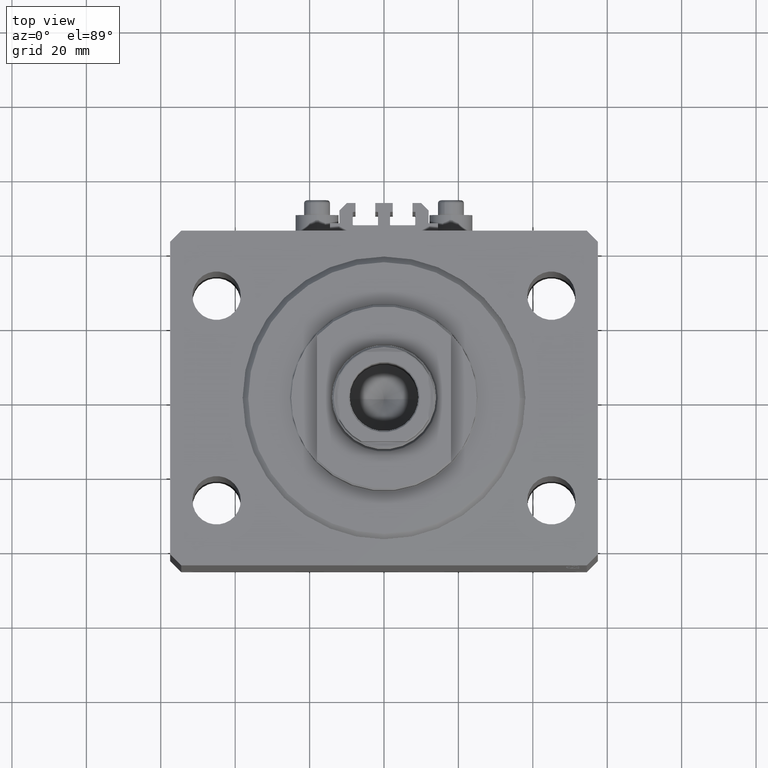
[diagram: clean part render]
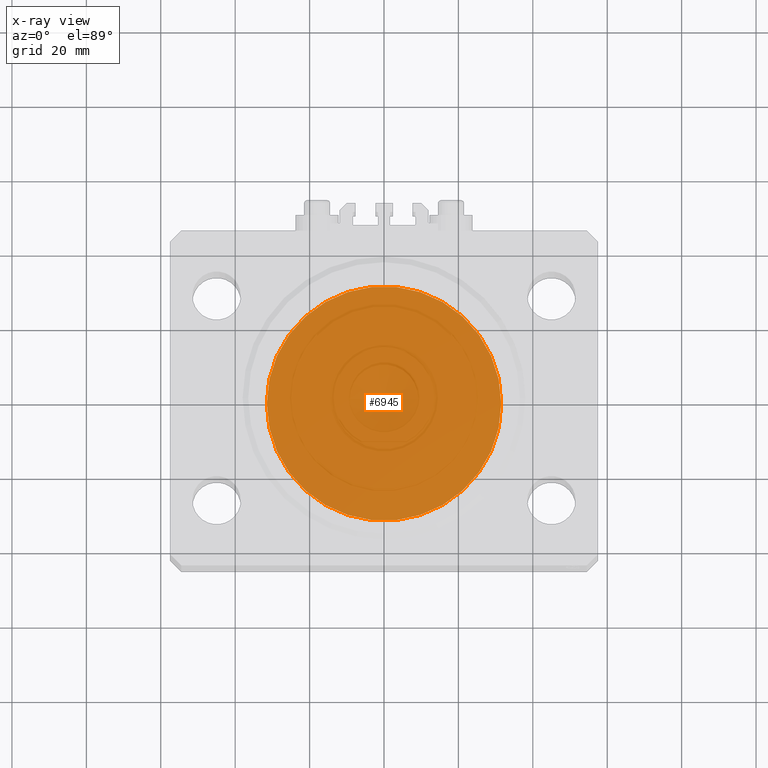
[diagram: x-ray — body ghosted, one internal face saturated and labeled with its STEP entity id]
A machine part, top view, then the same camera in x-ray: the body is ghosted and one INTERNAL B-rep face — a face not visible from any outside direction — is saturated and labeled: STEP entity #6945.
In plain terms, the highlighted planar face has unit normal (0, 0, 1).
Its self-contained STEP definition (entity closure, byte-faithful):
#2447 = ORIENTED_EDGE ( 'NONE', *, *, #9076, .F. ) ;
#3411 = DIRECTION ( 'NONE',  ( 1.000000000000000000, 0.000000000000000000, 0.000000000000000000 ) ) ;
#3525 = DIRECTION ( 'NONE',  ( 0.000000000000000000, 0.000000000000000000, 1.000000000000000000 ) ) ;
#3631 = DIRECTION ( 'NONE',  ( 0.000000000000000000, 0.000000000000000000, 1.000000000000000000 ) ) ;
#5574 = DIRECTION ( 'NONE',  ( 0.000000000000000000, 0.000000000000000000, 1.000000000000000000 ) ) ;
#6945 = ADVANCED_FACE ( 'NONE', ( #14962 ), #29592, .F. ) ;
#8308 = EDGE_LOOP ( 'NONE', ( #2447, #47065 ) ) ;
#9076 = EDGE_CURVE ( 'NONE', #36873, #11482, #27578, .T. ) ;
#9630 = EDGE_CURVE ( 'NONE', #11482, #36873, #14582, .T. ) ;
#11377 = DIRECTION ( 'NONE',  ( 1.000000000000000000, 0.000000000000000000, -0.000000000000000000 ) ) ;
#11482 = VERTEX_POINT ( 'NONE', #11994 ) ;
#11994 = CARTESIAN_POINT ( 'NONE',  ( 31.50000000000000000, 3.857637417314162689E-15, 0.000000000000000000 ) ) ;
#14582 = CIRCLE ( 'NONE', #42102, 31.50000000000000000 ) ;
#14962 = FACE_OUTER_BOUND ( 'NONE', #8308, .T. ) ;
#25292 = AXIS2_PLACEMENT_3D ( 'NONE', #40699, #3631, #3411 ) ;
#26899 = CARTESIAN_POINT ( 'NONE',  ( 0.000000000000000000, 0.000000000000000000, 0.000000000000000000 ) ) ;
#27578 = CIRCLE ( 'NONE', #25292, 31.50000000000000000 ) ;
#29592 = PLANE ( 'NONE',  #36664 ) ;
#33387 = CARTESIAN_POINT ( 'NONE',  ( -31.50000000000000000, 0.000000000000000000, 0.000000000000000000 ) ) ;
#36664 = AXIS2_PLACEMENT_3D ( 'NONE', #44172, #3525, #11377 ) ;
#36873 = VERTEX_POINT ( 'NONE', #33387 ) ;
#40699 = CARTESIAN_POINT ( 'NONE',  ( 0.000000000000000000, 0.000000000000000000, 0.000000000000000000 ) ) ;
#41481 = DIRECTION ( 'NONE',  ( 1.000000000000000000, 0.000000000000000000, 0.000000000000000000 ) ) ;
#42102 = AXIS2_PLACEMENT_3D ( 'NONE', #26899, #5574, #41481 ) ;
#44172 = CARTESIAN_POINT ( 'NONE',  ( 0.000000000000000000, 0.000000000000000000, 0.000000000000000000 ) ) ;
#47065 = ORIENTED_EDGE ( 'NONE', *, *, #9630, .F. ) ;